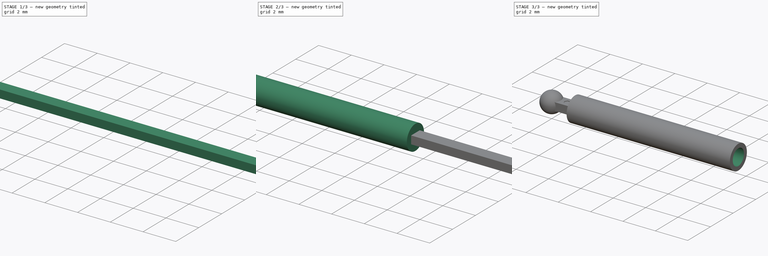
[diagram: build sequence overview — one tinted view per stage of 3, left to right]
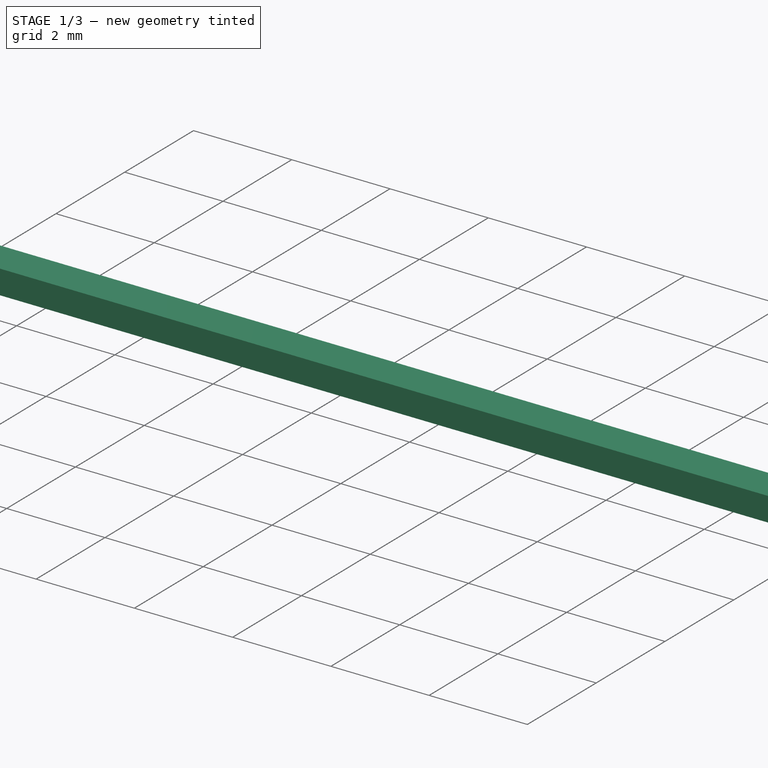
[diagram: stage 1 of 3 — iso view after this stage's code; geometry added in this stage tinted green]
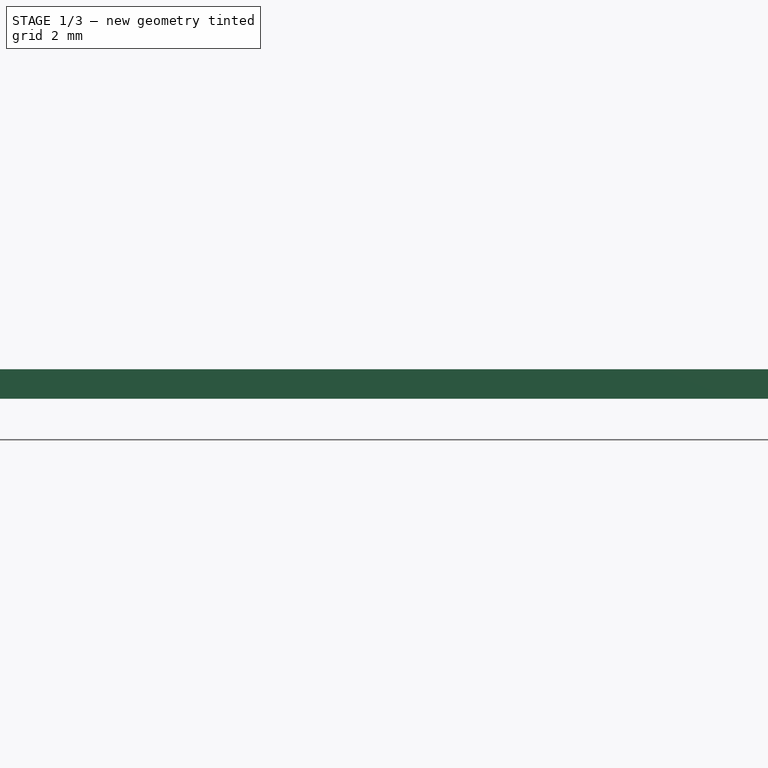
[diagram: stage 1 of 3 — front view after this stage's code; geometry added in this stage tinted green]
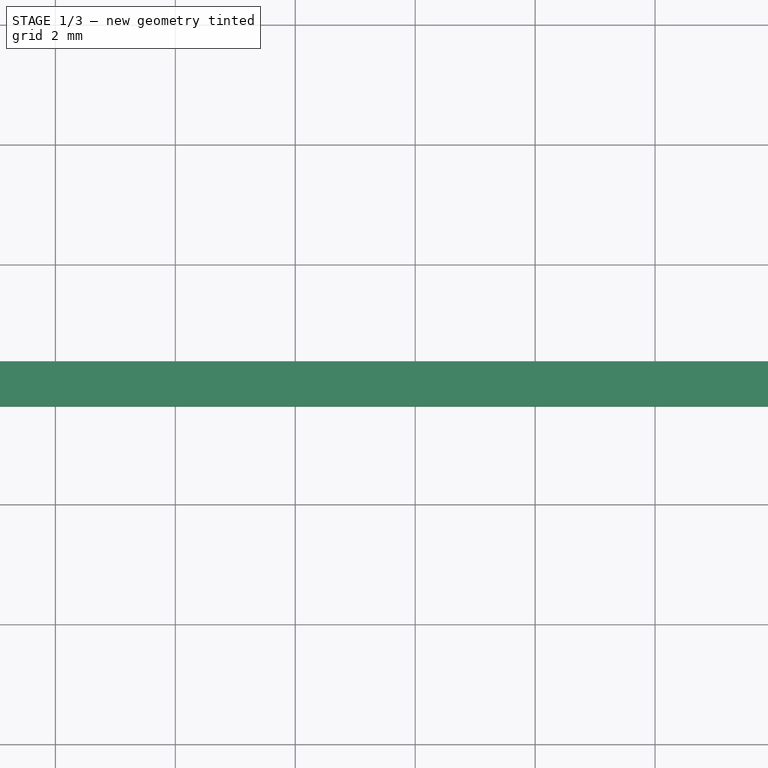
[diagram: stage 1 of 3 — top view after this stage's code; geometry added in this stage tinted green]
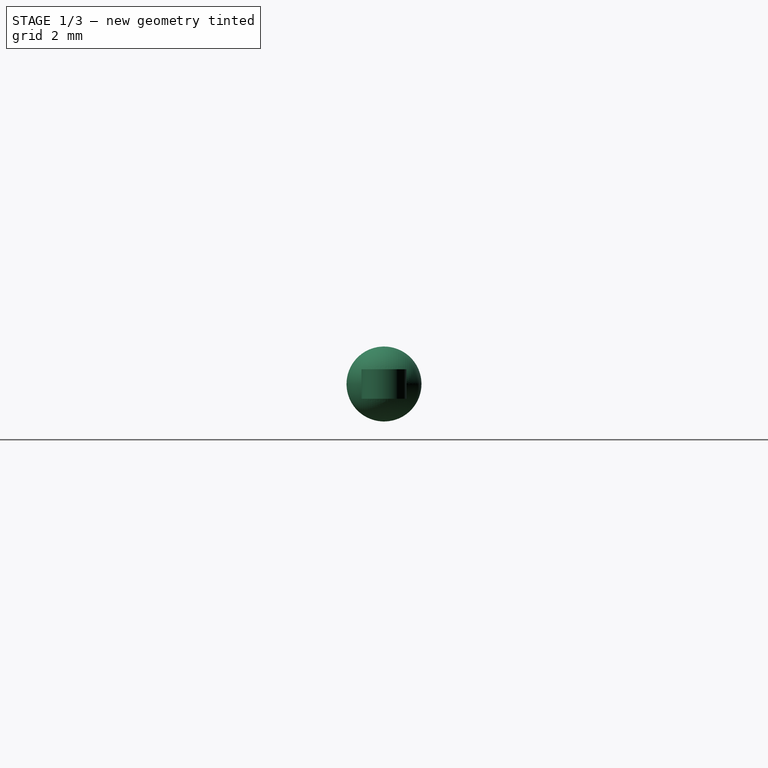
[diagram: stage 1 of 3 — right view after this stage's code; geometry added in this stage tinted green]
FCSTD DOCUMENT  (FreeCAD 0.20R29177 (Git))
Label: ax3
License: All rights reserved
LicenseURL: http://en.wikipedia.org/wiki/All_rights_reserved
objects: Sketcher::SketchObject×7, PartDesign::Line×3, PartDesign::Pad×2, PartDesign::Revolution×2, PartDesign::Plane×2, PartDesign::Pocket×2, Spreadsheet::Sheet×1, PartDesign::Hole×1, PartDesign::Body×1
note: 27 computed .brp shape members not serialized (recipe doc carries the construction recipe); baked Part::Feature solids carry a one-line shape summary decoded from their .brp

FEATURE [Spreadsheet::Sheet] Spreadsheet
  cells = A2=Design Parameters; A3=RefLength; B3(RefLength)==1mm; A4=Width; B4(Width)==0.75 * RefLength; A5=Thickness; B5(Thickness)==0.5 * RefLength; A6=ThicknessMargin; B6(ThicknessMargin)==0.01 * RefLength; A7=ThicknessPad; B7(ThicknessPad)==Thickness - ThicknessMargin; A8=TotalLength_3And4; B8(TotalLength_3And4)==19.21 * RefLength + Width; A9=BallCenterOffsetX; B9(BallCenterOffsetX)==TotalLength_3And4 - Width; A10=BallDiameter; B10(BallDiameter)==1.25 * RefLength; A11=BallToBallCenter; B11(BallToBallCenter)==BallCenterOffsetX; A12=MarkPositionX; B12(MarkPositionX)==0.05 * BallToBallCenter; A13=MarkDiameter; B13(MarkDiameter)==0.5 * Width; A14=MarkDepth; B14(MarkDepth)==0.05 * RefLength; A16=CylinderDiameter; B16(CylinderDiameter)==1.5 * RefLength; A17=CylinderBeginX; B17(CylinderBeginX)==0.075 * BallToBallCenter; A18=CylinderEndX; B18(CylinderEndX)==0.6 * BallToBallCenter; A19=CylinderLength; B19(CylinderLength)==CylinderEndX - CylinderBeginX; A20=CylinderHoleDepth; B20(CylinderHoleDepth)==0.95 * CylinderLength; A21=CylinderHoleDiameter; B21(CylinderHoleDiameter)==1.1 * sqrt(pow(Width; 2) + pow(Thickness; 2)); A23=EndOffset; B23==CylinderEndX - 0.5 * BallToBallCenter
FEATURE [Sketcher::SketchObject] Sketch  label="BeamSketch"
  FullyConstrained = true
  MapMode = 5
  Support = -> [XY_Plane]
  expr: Constraints[22] = Spreadsheet.TotalLength_3And4
  expr: Constraints[23] = Spreadsheet.Width
  sketch-geometry (10):
    g0: LineSegment StartX=-1.9e-15 StartY=0.375 StartZ=0 EndX=19.21 EndY=0.375 EndZ=0
    g1: LineSegment StartX=19.21 StartY=-0.375 StartZ=0 EndX=-3.6e-15 EndY=-0.375 EndZ=0
    g2: LineSegment StartX=19.21 StartY=0.375 StartZ=0 EndX=19.21 EndY=0 EndZ=0
    g3: LineSegment StartX=19.21 StartY=0 StartZ=0 EndX=19.21 EndY=-0.375 EndZ=0
    g4: ArcOfCircle CenterX=19.21 CenterY=0 CenterZ=0 NormalX=0 NormalY=0 NormalZ=1 AngleXU=0 Radius=0.375 StartAngle=4.71239 EndAngle=7.85398
    g5: LineSegment StartX=-1.9e-15 StartY=0.375 StartZ=0 EndX=-1.9e-15 EndY=0 EndZ=0
    g6: LineSegment StartX=-1.9e-15 StartY=0 StartZ=0 EndX=-1.9e-15 EndY=-0.375 EndZ=0
    g7: ArcOfCircle CenterX=-1.9e-15 CenterY=0 CenterZ=0 NormalX=0 NormalY=0 NormalZ=1 AngleXU=0 Radius=0.375 StartAngle=1.5708 EndAngle=4.71239
    g8: GeomPoint X=-0.375 Y=0 Z=0
    g9: GeomPoint X=19.585 Y=0 Z=0
  constraints (25):
    c: Horizontal(g0)
    c: Horizontal(g1)
    c: Coincident(g2,g3)
    c: Coincident(g2,g0)
    c: Coincident(g3,g1)
    c: Coincident(g4,g1)
    c: Coincident(g4,g0)
    c: Coincident(g4,g2)
    c: Vertical(g3)
    c: Vertical(g2)
    c: Coincident(g5,g6)
    c: Vertical(g6)
    c: Vertical(g5)
    c: Coincident(g5,g0)
    c: Coincident(g6,g1)
    c: Coincident(g7,g1)
    c: Coincident(g7,g5)
    c: Coincident(g7,g0)
    c: PointOnObject(g8,g-1)
    c: PointOnObject(g8,g7)
    c: PointOnObject(g9,g-1)
    c: PointOnObject(g9,g4)
    c: DistanceX(g8,g9) = 19.96
    c: DistanceY(g1,g0) = 0.75
    c: Coincident(g7,g-1)
FEATURE [PartDesign::Pad] Pad  label="BeamPad"
  Direction = (0,0,1)
  Length = 0.49
  Length2 = 10
  Midplane = true
  Profile = -> Sketch
  ReferenceAxis = -> Sketch [N_Axis]
  Type = 0
  expr: Length = Spreadsheet.ThicknessPad
FEATURE [Sketcher::SketchObject] Sketch001  label="LeftBallSketch"
  FullyConstrained = true
  MapMode = 5
  Support = -> [XY_Plane]
  expr: Constraints[6] = Spreadsheet.BallDiameter
  sketch-geometry (3):
    g0: LineSegment StartX=-2e-15 StartY=0.625 StartZ=0 EndX=-2e-15 EndY=0 EndZ=0
    g1: LineSegment StartX=-2e-15 StartY=0 StartZ=0 EndX=-2e-15 EndY=-0.625 EndZ=0
    g2: ArcOfCircle CenterX=-2e-15 CenterY=0 CenterZ=0 NormalX=0 NormalY=0 NormalZ=1 AngleXU=0 Radius=0.625 StartAngle=1.5708 EndAngle=4.71239
  constraints (8):
    c: Coincident(g0,g1)
    c: Vertical(g1)
    c: Vertical(g0)
    c: Coincident(g2,g0)
    c: Coincident(g2,g0)
    c: Coincident(g2,g1)
    c: Diameter(g2) = 1.25
    c: Coincident(g0,g-1)
FEATURE [PartDesign::Line] DatumLine  label="LeftBallDatumLine"
  AttacherType = Attacher::AttachEngineLine
  Length = 20
  MapMode = 29
  Placement = pos=(-2e-15,0,0) rot=(1,0,0;1.5708rad)
  ResizeMode = 0
  Support = -> [Sketch001]
FEATURE [PartDesign::Revolution] Revolution  label="LeftBallRevolution"
  Angle = 360
  Axis = (0,-1,2e-16)
  Base = (-2e-15,0,0)
  BaseFeature = -> Pad
  Profile = -> Sketch001
  ReferenceAxis = -> DatumLine
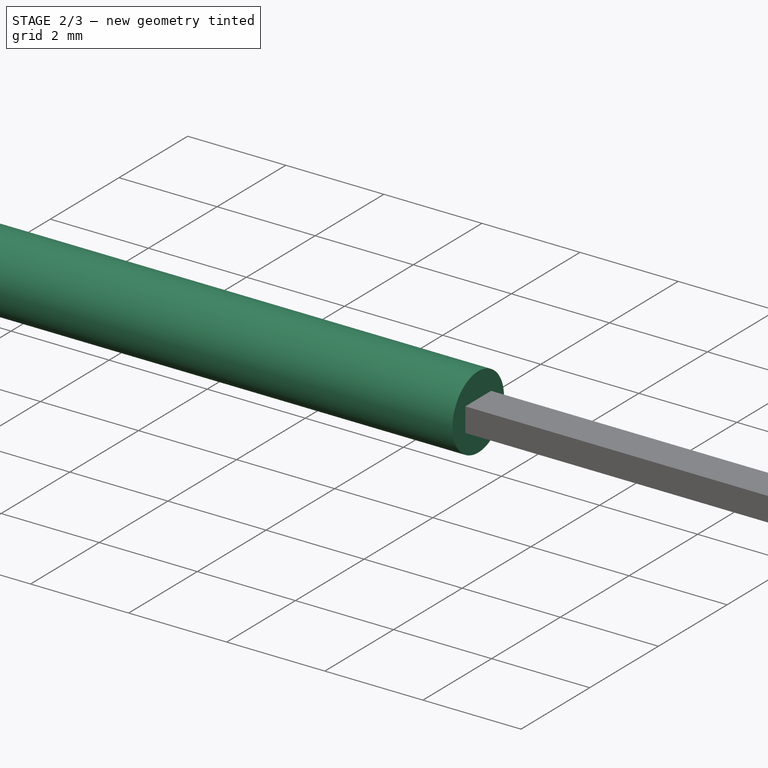
[diagram: stage 2 of 3 — iso view after this stage's code; geometry added in this stage tinted green]
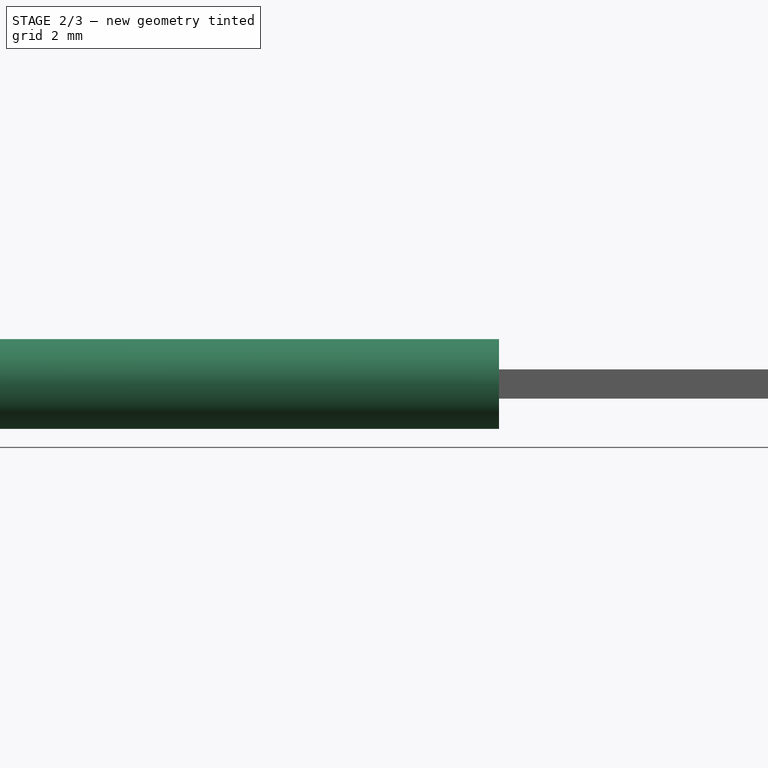
[diagram: stage 2 of 3 — front view after this stage's code; geometry added in this stage tinted green]
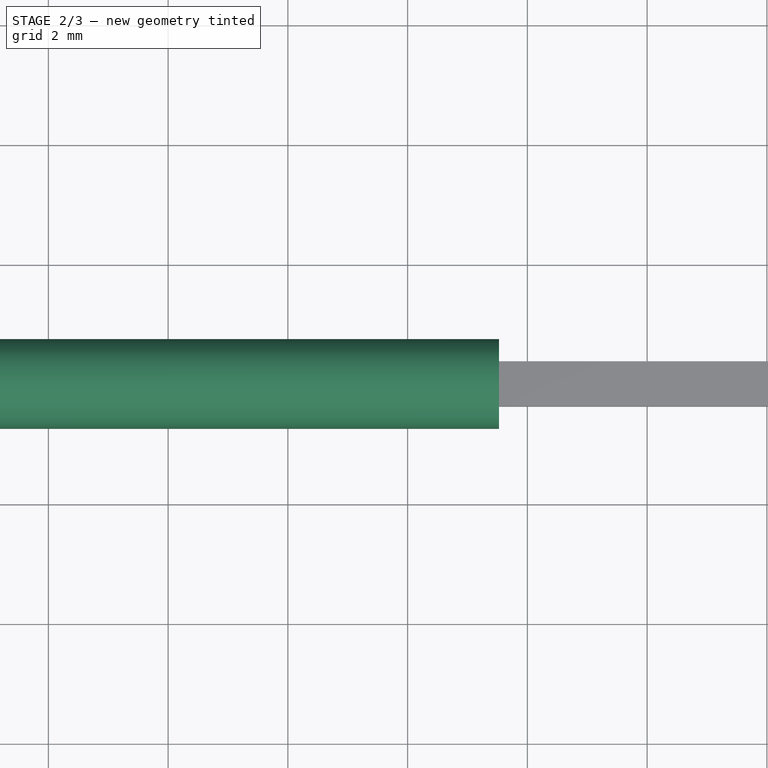
[diagram: stage 2 of 3 — top view after this stage's code; geometry added in this stage tinted green]
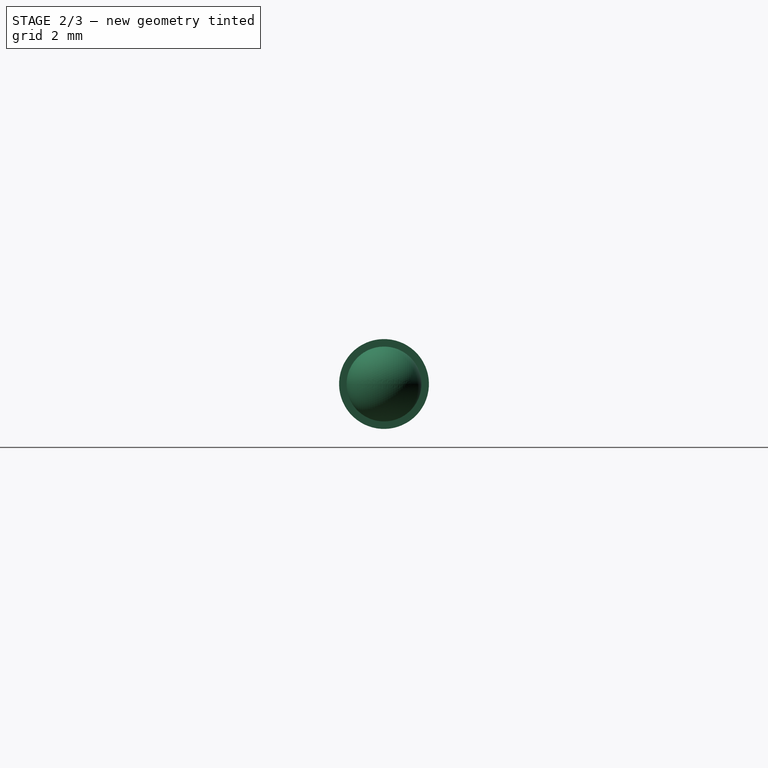
[diagram: stage 2 of 3 — right view after this stage's code; geometry added in this stage tinted green]
FEATURE [Sketcher::SketchObject] Sketch002  label="RightBallSketch"
  FullyConstrained = true
  MapMode = 5
  Support = -> [XY_Plane]
  expr: Constraints[10] = Spreadsheet.BallDiameter
  expr: Constraints[2] = Spreadsheet.BallCenterOffsetX
  sketch-geometry (4):
    g0: LineSegment StartX=0 StartY=0 StartZ=0 EndX=19.21 EndY=0 EndZ=0
    g1: ArcOfCircle CenterX=19.21 CenterY=0 CenterZ=0 NormalX=0 NormalY=0 NormalZ=1 AngleXU=0 Radius=0.625 StartAngle=4.71239 EndAngle=7.85398
    g2: LineSegment StartX=19.21 StartY=0.625 StartZ=0 EndX=19.21 EndY=0 EndZ=0
    g3: LineSegment StartX=19.21 StartY=0 StartZ=0 EndX=19.21 EndY=-0.625 EndZ=0
  constraints (11):
    c: Horizontal(g0)
    c: Coincident(g-1,g0)
    c: DistanceX(g0,g0) = 19.21
    c: Coincident(g0,g1)
    c: Vertical(g2)
    c: Vertical(g3)
    c: Coincident(g1,g3)
    c: Coincident(g1,g2)
    c: Coincident(g2,g1)
    c: Coincident(g3,g1)
    c: DistanceY(g1,g1) = 1.25
FEATURE [PartDesign::Line] DatumLine001  label="RightBallDatumLine"
  AttacherType = Attacher::AttachEngineLine
  Length = 20
  MapMode = 29
  Placement = pos=(19.21,0,0) rot=(1,0,0;1.5708rad)
  ResizeMode = 0
  Support = -> [Sketch002]
FEATURE [PartDesign::Revolution] Revolution001  label="RightBallRevolution"
  Angle = 360
  Axis = (0,-1,2e-16)
  Base = (19.21,0,0)
  BaseFeature = -> Revolution
  Profile = -> Sketch002
  ReferenceAxis = -> DatumLine001
  Reversed = true
FEATURE [PartDesign::Plane] DatumPlane  label="MarkDatumPlane"
  AttachmentOffset = pos=(0,0,0.25) rot=(0,0,1;0rad)
  Length = 60
  MapMode = 5
  Placement = pos=(0,0,0.25) rot=(0,0,1;0rad)
  ResizeMode = 0
  Support = -> [XY_Plane]
  Width = 60
  expr: .AttachmentOffset.Base.z = 0.5 * Spreadsheet.Thickness
FEATURE [Sketcher::SketchObject] Sketch003  label="MarkSketch"
  FullyConstrained = true
  MapMode = 5
  Placement = pos=(0,0,0.25) rot=(0,0,1;0rad)
  Support = -> [DatumPlane]
  expr: Constraints[21] = Spreadsheet.MarkDiameter
  expr: Constraints[22] = Spreadsheet.MarkPositionX
  sketch-geometry (8):
    g0: LineSegment StartX=1.43e-14 StartY=-2.2e-15 StartZ=0 EndX=0.9605 EndY=-2.2e-15 EndZ=0
    g1: LineSegment StartX=1.05425 StartY=-0.16238 StartZ=0 EndX=1.148 EndY=1.39e-14 EndZ=0
    g2: LineSegment StartX=1.148 StartY=1.39e-14 StartZ=0 EndX=1.05425 EndY=0.16238 EndZ=0
    g3: LineSegment StartX=1.05425 StartY=0.16238 StartZ=0 EndX=0.86675 EndY=0.16238 EndZ=0
    g4: LineSegment StartX=0.86675 StartY=0.16238 StartZ=0 EndX=0.773 EndY=-1.79e-14 EndZ=0
    g5: LineSegment StartX=0.773 StartY=-1.79e-14 StartZ=0 EndX=0.86675 EndY=-0.16238 EndZ=0
    g6: LineSegment StartX=0.86675 StartY=-0.16238 StartZ=0 EndX=1.05425 EndY=-0.16238 EndZ=0
    g7: Circle CenterX=0.9605 CenterY=-2.2e-15 CenterZ=0 NormalX=0 NormalY=0 NormalZ=1 AngleXU=0 Radius=0.1875
  constraints (19):
    c: Horizontal(g0)
    c: Coincident(g-1,g0)
    c: Coincident(g1,g2)
    c: Coincident(g2,g3)
    c: Coincident(g3,g4)
    c: Coincident(g4,g5)
    c: Coincident(g5,g6)
    c: Coincident(g6,g1)
    c: Equal(g1, g2-g6) x5
    c: PointOnObject(g1,g7)
    c: PointOnObject(g2,g7)
    c: PointOnObject(g3,g7)
    c: PointOnObject(g4,g7)
    c: PointOnObject(g5,g7)
    c: PointOnObject(g6,g7)
    c: Horizontal(g3)
    c: Coincident(g7,g0)
    c: Diameter(g7) = 0.375
    c: DistanceX(g0,g0) = 0.9605
FEATURE [PartDesign::Pocket] Pocket  label="MarkPocket"
  BaseFeature = -> Revolution001
  Direction = (0,0,-1)
  Length = 0.05
  Length2 = 5
  Profile = -> Sketch003
  ReferenceAxis = -> Sketch003 [N_Axis]
  Type = 0
  expr: Length = Spreadsheet.MarkDepth
FEATURE [PartDesign::Plane] DatumPlane001  label="CylinderEndDatumPlane"
  AttachmentOffset = pos=(0,0,11.526) rot=(0,0,1;0rad)
  Length = 60
  MapMode = 5
  Placement = pos=(11.526,-2.6e-15,2.6e-15) rot=(0.57735,0.57735,0.57735;2.0944rad)
  ResizeMode = 0
  Support = -> [YZ_Plane]
  Width = 60
  expr: .AttachmentOffset.Base.z = Spreadsheet.CylinderEndX
FEATURE [Sketcher::SketchObject] Sketch004  label="CylinderSketch"
  FullyConstrained = true
  MapMode = 5
  Placement = pos=(11.526,-2.6e-15,2.6e-15) rot=(0.57735,0.57735,0.57735;2.0944rad)
  Support = -> [DatumPlane001]
  expr: Constraints[1] = Spreadsheet.CylinderDiameter
  sketch-geometry (1):
    g0: Circle CenterX=0 CenterY=0 CenterZ=0 NormalX=0 NormalY=0 NormalZ=1 AngleXU=0 Radius=0.75
  constraints (2):
    c: Coincident(g0,g-1)
    c: Diameter(g0) = 1.5
FEATURE [PartDesign::Pad] Pad001  label="CylinderPad"
  BaseFeature = -> Pocket
  Direction = (1,-1e-16,1e-16)
  Length = 10.0853
  Length2 = 10
  Profile = -> Sketch004
  ReferenceAxis = -> Sketch004 [N_Axis]
  Reversed = true
  Type = 0
  expr: Length = Spreadsheet.CylinderLength
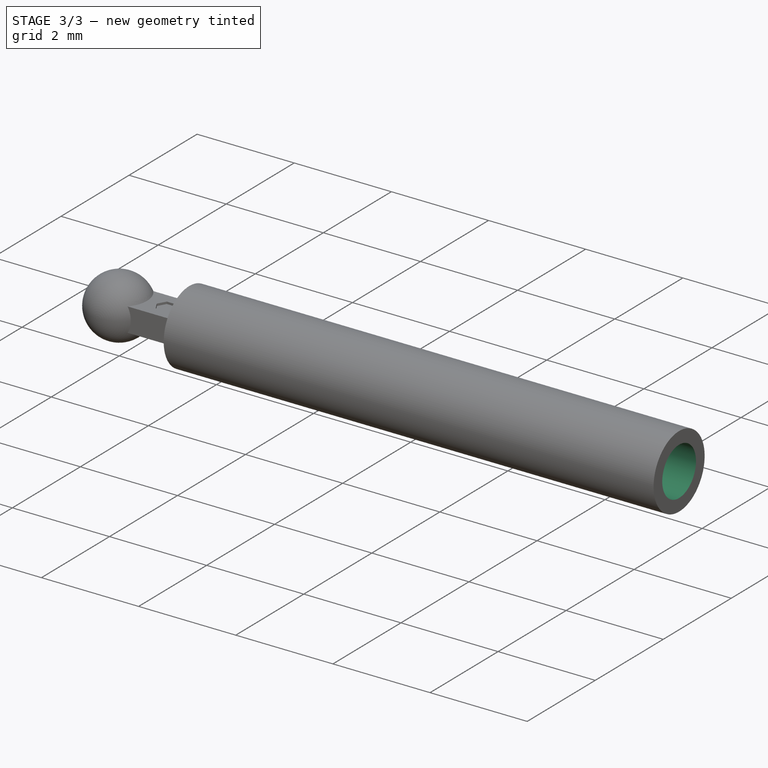
[diagram: stage 3 of 3 — iso view after this stage's code; geometry added in this stage tinted green]
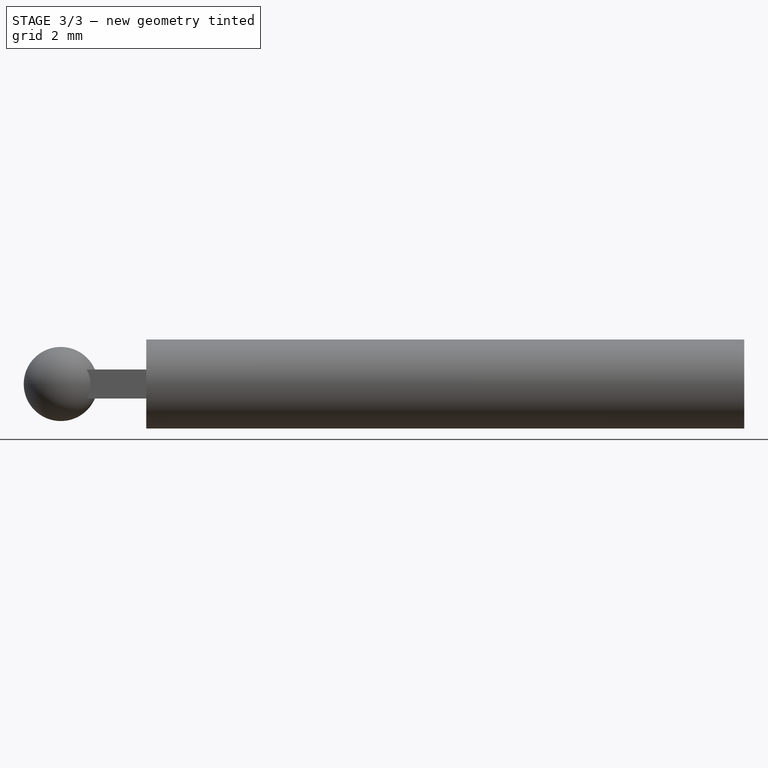
[diagram: stage 3 of 3 — front view after this stage's code; geometry added in this stage tinted green]
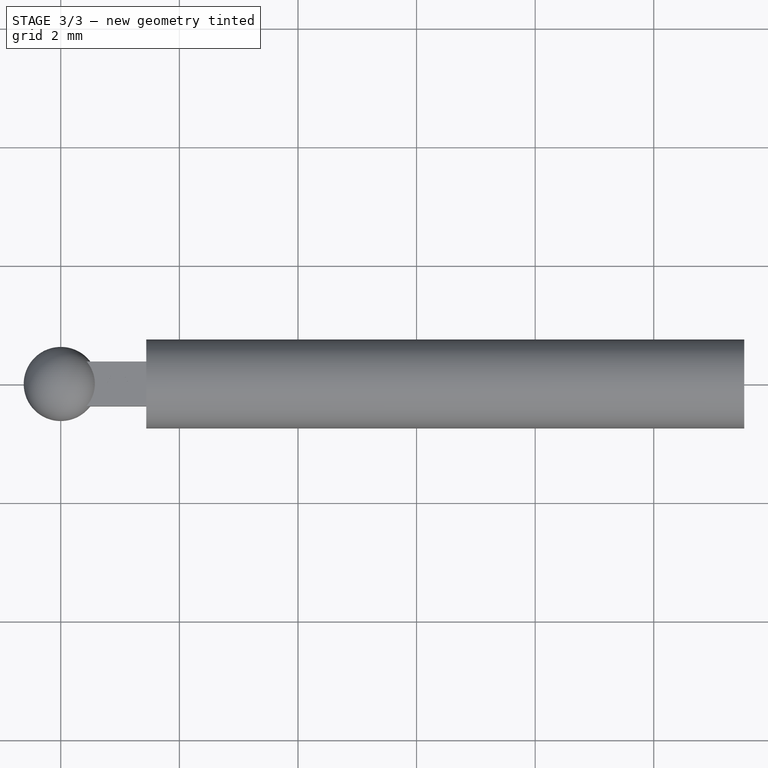
[diagram: stage 3 of 3 — top view after this stage's code; geometry added in this stage tinted green]
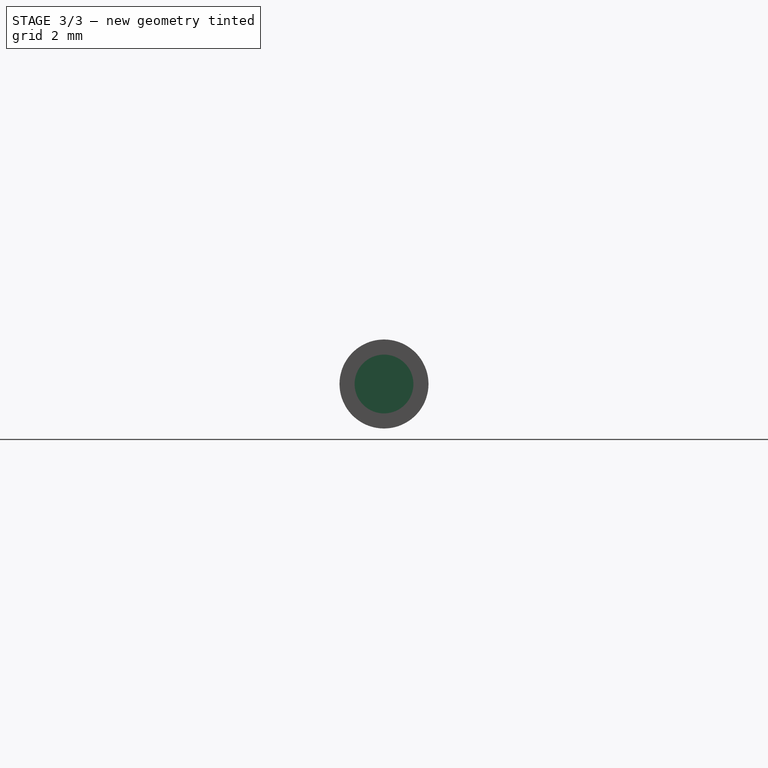
[diagram: stage 3 of 3 — right view after this stage's code; geometry added in this stage tinted green]
FEATURE [Sketcher::SketchObject] Sketch005
  FullyConstrained = true
  MapMode = 5
  Placement = pos=(11.526,-2.6e-15,2.6e-15) rot=(0.57735,0.57735,0.57735;2.0944rad)
  Support = -> [DatumPlane001]
  expr: Constraints[1] = 1.5 * Spreadsheet.BallDiameter
  sketch-geometry (1):
    g0: Circle CenterX=0 CenterY=0 CenterZ=0 NormalX=0 NormalY=0 NormalZ=1 AngleXU=0 Radius=0.9375
  constraints (2):
    c: Coincident(g0,g-1)
    c: Diameter(g0) = 1.875
FEATURE [PartDesign::Hole] Hole  label="EndCutOffHole"
  BaseFeature = -> Pad001
  CustomThreadClearance = 0
  Depth = 26
  DepthType = 0
  Diameter = 6
  DrillForDepth = false
  DrillPoint = 1
  DrillPointAngle = 118
  HoleCutCountersinkAngle = 90
  HoleCutCustomValues = false
  HoleCutDepth = 0
  HoleCutDiameter = 6.1
  HoleCutType = 0
  ModelThread = false
  Profile = -> Sketch005
  Reversed = true
  Tapered = false
  TaperedAngle = 90
  ThreadClass = 0
  ThreadDepth = 26
  ThreadDepthType = 0
  ThreadDirection = 0
  ThreadFit = 0
  ThreadSize = 0
  ThreadType = 0
  Threaded = false
  UseCustomThreadClearance = false
FEATURE [Sketcher::SketchObject] Sketch006  label="CylinderHoleSketch"
  FullyConstrained = true
  MapMode = 5
  Placement = pos=(11.526,-2.6e-15,2.6e-15) rot=(0.57735,0.57735,0.57735;2.0944rad)
  Support = -> [DatumPlane001]
  expr: Constraints[1] = Spreadsheet.CylinderHoleDiameter
  sketch-geometry (1):
    g0: Circle CenterX=0 CenterY=0 CenterZ=0 NormalX=0 NormalY=0 NormalZ=1 AngleXU=0 Radius=0.495763
  constraints (2):
    c: Coincident(g0,g-1)
    c: Diameter(g0) = 0.991527
FEATURE [PartDesign::Pocket] Pocket001  label="CylinderHolePocket"
  BaseFeature = -> Hole
  Direction = (-1,1e-16,-1e-16)
  Length = 9.58099
  Length2 = 5
  Profile = -> Sketch006
  ReferenceAxis = -> Sketch006 [N_Axis]
  Type = 0
  expr: Length = Spreadsheet.CylinderHoleDepth
FEATURE [PartDesign::Line] DatumLine002  label="SliderAxisDatumLine"
  AttacherType = Attacher::AttachEngineLine
  Length = 20
  MapMode = 18
  Placement = pos=(11.526,-2.6e-15,2.6e-15) rot=(0.57735,0.57735,0.57735;2.0944rad)
  ResizeMode = 0
  Support = -> [DatumPlane001]
FEATURE [PartDesign::Body] Body
  Group = -> [Sketch,Pad,Sketch001,DatumLine,Revolution,Sketch002,DatumLine001,Revolution001,DatumPlane,Sketch003,Pocket,DatumPlane001,Sketch004,Pad001,Sketch005,Hole,Sketch006,Pocket001,DatumLine002]
  Origin = -> Origin
  Tip = -> Pocket001
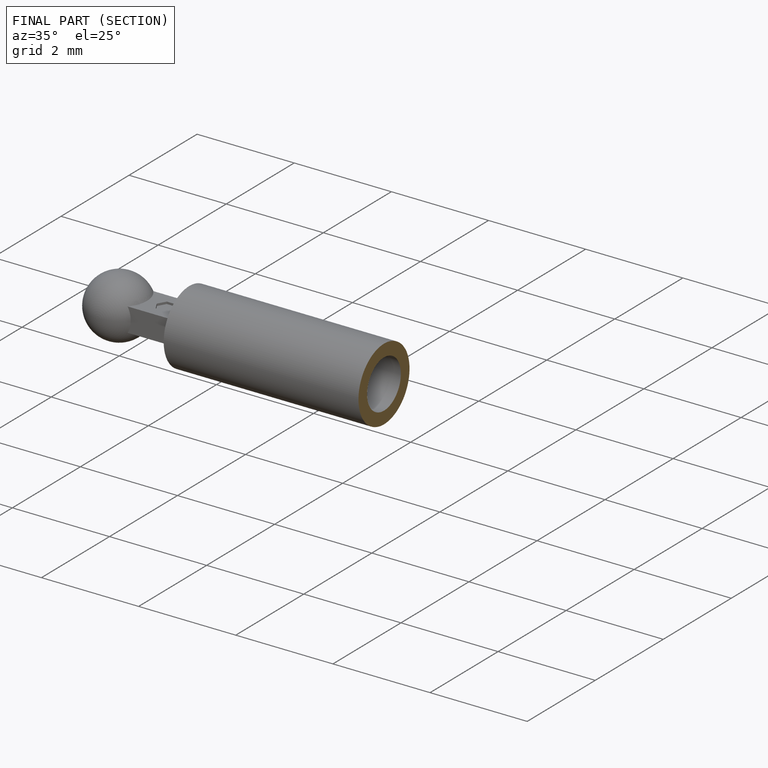
[diagram: finished part — half-section view (interior)]
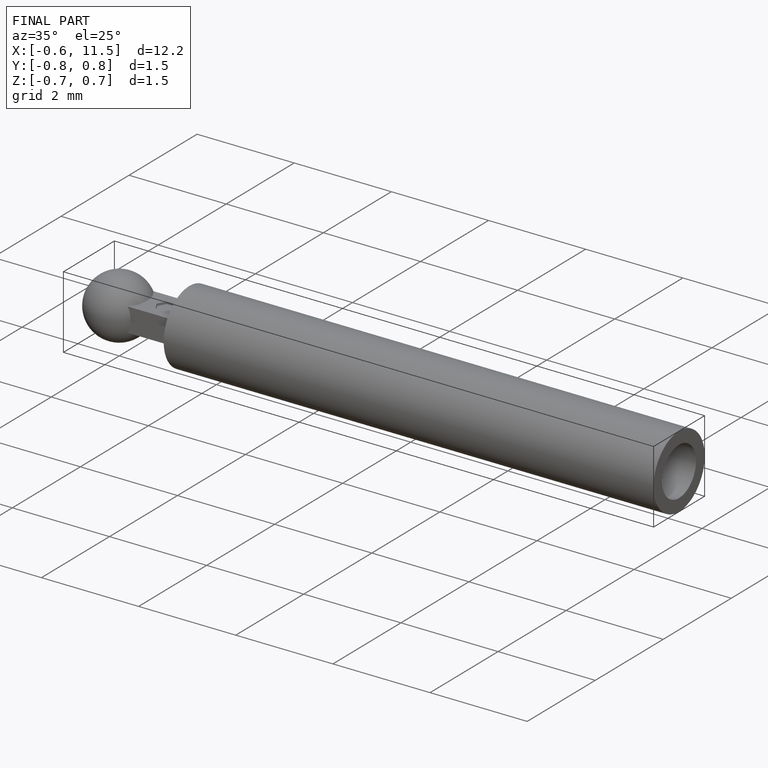
[diagram: finished part — iso view with bounding-box wireframe]
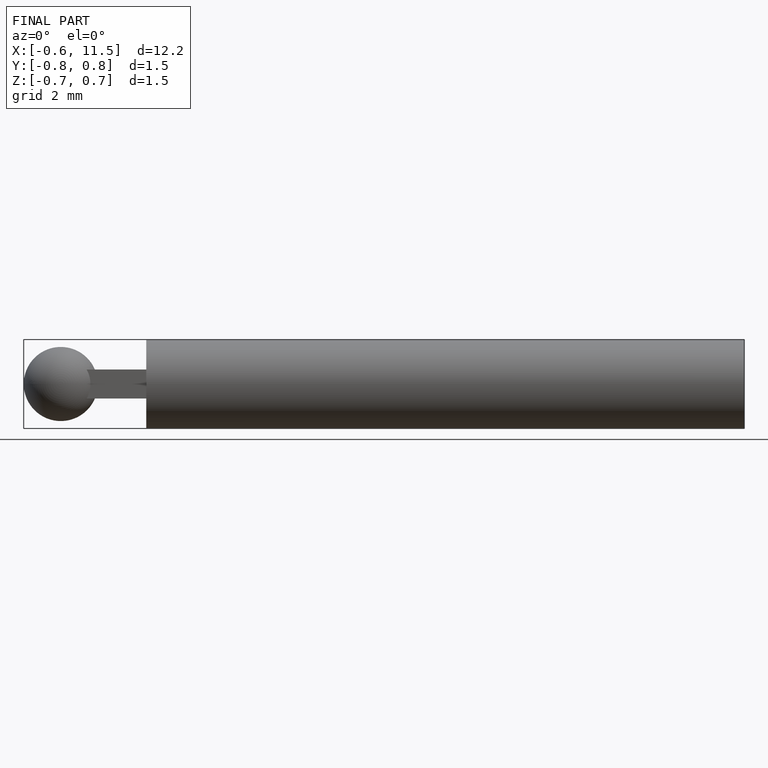
[diagram: finished part — front view with bounding-box wireframe]
